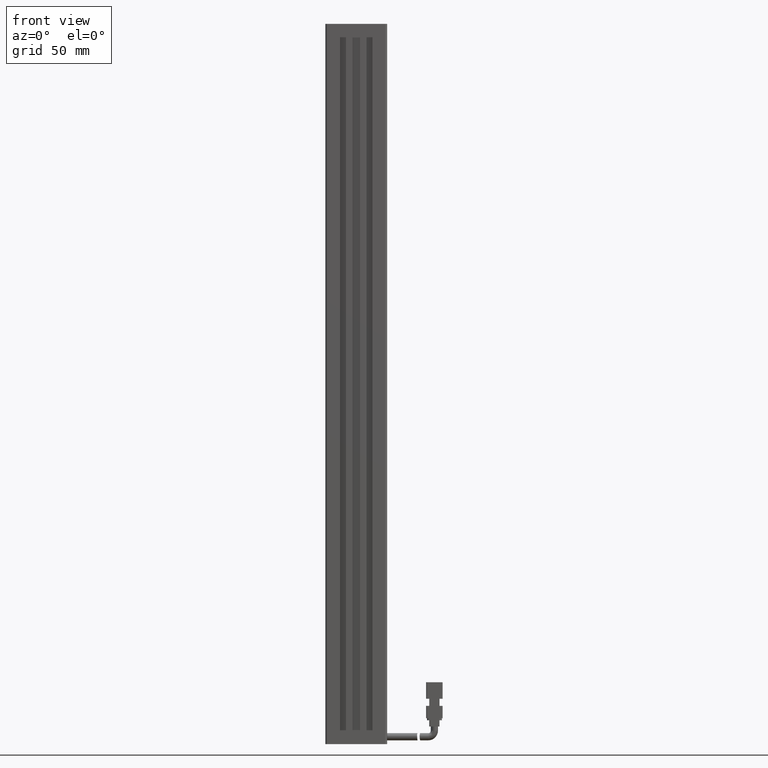
[diagram: clean part render]
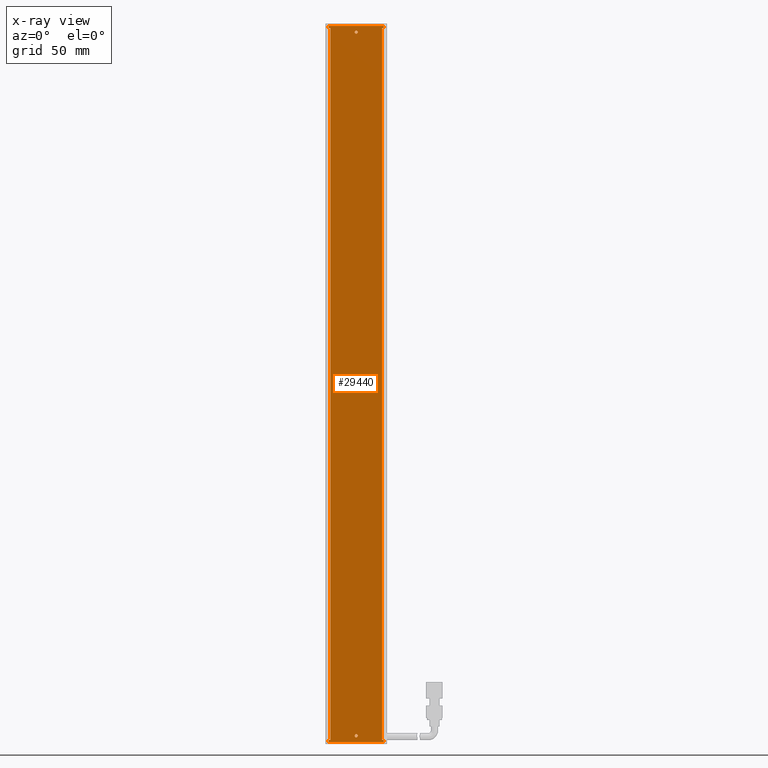
[diagram: x-ray — body ghosted, one internal face saturated and labeled with its STEP entity id]
A machine part, front view, then the same camera in x-ray: the body is ghosted and one INTERNAL B-rep face — a face not visible from any outside direction — is saturated and labeled: STEP entity #29440.
In plain terms, the highlighted planar face has unit normal (-0, 1, 0).
Its self-contained STEP definition (entity closure, byte-faithful):
#1056 = DIRECTION ( 'NONE',  ( -0.0000000000000000000, -0.0000000000000000000, -1.000000000000000000 ) ) ;
#1829 = ORIENTED_EDGE ( 'NONE', *, *, #15910, .F. ) ;
#1908 = CIRCLE ( 'NONE', #6492, 0.7499999999999729100 ) ;
#2157 = CARTESIAN_POINT ( 'NONE',  ( 54.32537974683540200, 32.19594479660386100, -288.0000000000000600 ) ) ;
#2257 = DIRECTION ( 'NONE',  ( 5.551115123125781500E-017, 0.0000000000000000000, 1.000000000000000000 ) ) ;
#5108 = CARTESIAN_POINT ( 'NONE',  ( 28.42537974683542100, 32.19594479660386800, 60.00000000000001400 ) ) ;
#5535 = ORIENTED_EDGE ( 'NONE', *, *, #42288, .F. ) ;
#6492 = AXIS2_PLACEMENT_3D ( 'NONE', #27719, #64194, #32967 ) ;
#7372 = VERTEX_POINT ( 'NONE', #44962 ) ;
#8231 = DIRECTION ( 'NONE',  ( -5.551115123125781500E-017, -0.0000000000000000000, -1.000000000000000000 ) ) ;
#8800 = VECTOR ( 'NONE', #55940, 1000.000000000000000 ) ;
#9302 = VECTOR ( 'NONE', #52233, 1000.000000000000000 ) ;
#9456 = CIRCLE ( 'NONE', #50354, 0.7499999999999729100 ) ;
#10446 = EDGE_CURVE ( 'NONE', #64390, #49673, #1908, .T. ) ;
#10892 = LINE ( 'NONE', #26284, #9302 ) ;
#11342 = VERTEX_POINT ( 'NONE', #38814 ) ;
#12390 = EDGE_CURVE ( 'NONE', #11342, #62693, #41146, .T. ) ;
#12787 = EDGE_CURVE ( 'NONE', #63011, #38519, #36272, .T. ) ;
#12870 = VECTOR ( 'NONE', #58849, 1000.000000000000000 ) ;
#12908 = ORIENTED_EDGE ( 'NONE', *, *, #12787, .F. ) ;
#13397 = CARTESIAN_POINT ( 'NONE',  ( 27.52537974683538000, 32.19594479660386100, 59.00000000000005000 ) ) ;
#13995 = CARTESIAN_POINT ( 'NONE',  ( 40.92537974683536100, 32.19594479660386100, -285.2500000000000000 ) ) ;
#14304 = CARTESIAN_POINT ( 'NONE',  ( 54.32537974683541600, 32.19594479660386100, 59.00000000000005000 ) ) ;
#14660 = VERTEX_POINT ( 'NONE', #65896 ) ;
#14723 = CARTESIAN_POINT ( 'NONE',  ( 53.42537974683542500, 32.19594479660386800, 58.00000000000000700 ) ) ;
#15576 = LINE ( 'NONE', #13397, #41642 ) ;
#15910 = EDGE_CURVE ( 'NONE', #22741, #42462, #67097, .T. ) ;
#16006 = VERTEX_POINT ( 'NONE', #66079 ) ;
#17324 = ORIENTED_EDGE ( 'NONE', *, *, #10446, .F. ) ;
#17420 = CARTESIAN_POINT ( 'NONE',  ( 40.92537974683536100, 32.19594479660386100, -286.7499999999999400 ) ) ;
#17669 = VECTOR ( 'NONE', #20174, 1000.000000000000000 ) ;
#17766 = ORIENTED_EDGE ( 'NONE', *, *, #59294, .F. ) ;
#18438 = AXIS2_PLACEMENT_3D ( 'NONE', #23224, #59604, #28437 ) ;
#19134 = CARTESIAN_POINT ( 'NONE',  ( 40.92537974683536100, 32.19594479660386100, -286.0000000000000000 ) ) ;
#19331 = LINE ( 'NONE', #35678, #17669 ) ;
#19379 = ORIENTED_EDGE ( 'NONE', *, *, #35987, .F. ) ;
#19846 = EDGE_CURVE ( 'NONE', #36177, #57789, #26715, .T. ) ;
#20174 = DIRECTION ( 'NONE',  ( 1.000000000000000000, 0.0000000000000000000, 0.0000000000000000000 ) ) ;
#20838 = EDGE_CURVE ( 'NONE', #63011, #60167, #34675, .T. ) ;
#20932 = DIRECTION ( 'NONE',  ( -1.000000000000000000, -0.0000000000000000000, 0.0000000000000000000 ) ) ;
#22741 = VERTEX_POINT ( 'NONE', #2157 ) ;
#23224 = CARTESIAN_POINT ( 'NONE',  ( 40.92537974683541800, 32.19594479660386100, 56.00000000000005000 ) ) ;
#23636 = CARTESIAN_POINT ( 'NONE',  ( 54.32537974683540900, 32.19594479660386100, -289.0000000000000000 ) ) ;
#24403 = DIRECTION ( 'NONE',  ( 0.0000000000000000000, 0.0000000000000000000, 1.000000000000000000 ) ) ;
#25100 = ORIENTED_EDGE ( 'NONE', *, *, #48107, .T. ) ;
#26284 = CARTESIAN_POINT ( 'NONE',  ( 40.92537974683542500, 32.19594479660386800, 58.00000000000000700 ) ) ;
#26378 = CARTESIAN_POINT ( 'NONE',  ( 40.92537974683542500, 32.19594479660386800, -288.0000000000000600 ) ) ;
#26396 = LINE ( 'NONE', #26378, #66362 ) ;
#26541 = CARTESIAN_POINT ( 'NONE',  ( 28.42537974683542100, 32.19594479660386800, -288.0000000000000600 ) ) ;
#26715 = LINE ( 'NONE', #37703, #12870 ) ;
#27719 = CARTESIAN_POINT ( 'NONE',  ( 40.92537974683536100, 32.19594479660386100, -286.0000000000000000 ) ) ;
#27923 = ORIENTED_EDGE ( 'NONE', *, *, #19846, .F. ) ;
#28004 = PLANE ( 'NONE',  #56020 ) ;
#28437 = DIRECTION ( 'NONE',  ( 0.0000000000000000000, 0.0000000000000000000, 1.000000000000000000 ) ) ;
#28908 = EDGE_CURVE ( 'NONE', #62693, #11342, #52228, .T. ) ;
#28960 = CARTESIAN_POINT ( 'NONE',  ( 54.32537974683541600, 32.19594479660386100, 59.00000000000005000 ) ) ;
#29014 = DIRECTION ( 'NONE',  ( -0.0000000000000000000, -1.000000000000000000, -0.0000000000000000000 ) ) ;
#29440 = ADVANCED_FACE ( 'NONE', ( #64757, #50852, #66388 ), #28004, .F. ) ;
#29844 = ORIENTED_EDGE ( 'NONE', *, *, #61312, .T. ) ;
#30174 = VERTEX_POINT ( 'NONE', #42866 ) ;
#30531 = LINE ( 'NONE', #46697, #44358 ) ;
#31259 = CARTESIAN_POINT ( 'NONE',  ( 54.32537974683541600, 32.19594479660386100, 58.00000000000000700 ) ) ;
#31568 = CARTESIAN_POINT ( 'NONE',  ( 53.42537974683542500, 32.19594479660386100, -288.0000000000000600 ) ) ;
#32967 = DIRECTION ( 'NONE',  ( 0.0000000000000000000, 0.0000000000000000000, 1.000000000000000000 ) ) ;
#33483 = DIRECTION ( 'NONE',  ( -0.0000000000000000000, 1.000000000000000000, 0.0000000000000000000 ) ) ;
#34418 = CARTESIAN_POINT ( 'NONE',  ( 27.52537974683535900, 32.19594479660386800, -288.0000000000000600 ) ) ;
#34675 = LINE ( 'NONE', #51687, #60731 ) ;
#34811 = EDGE_CURVE ( 'NONE', #14660, #30174, #15576, .T. ) ;
#35195 = VECTOR ( 'NONE', #62291, 1000.000000000000000 ) ;
#35678 = CARTESIAN_POINT ( 'NONE',  ( 40.92537974683542500, 32.19594479660386800, -288.0000000000000600 ) ) ;
#35987 = EDGE_CURVE ( 'NONE', #49673, #64390, #9456, .T. ) ;
#36177 = VERTEX_POINT ( 'NONE', #56928 ) ;
#36272 = LINE ( 'NONE', #58394, #63973 ) ;
#36828 = LINE ( 'NONE', #5108, #35195 ) ;
#37026 = CARTESIAN_POINT ( 'NONE',  ( 54.32537974683537400, 32.19594479660386100, -289.0000000000000000 ) ) ;
#37210 = EDGE_CURVE ( 'NONE', #16006, #53614, #36828, .T. ) ;
#37516 = LINE ( 'NONE', #23636, #49757 ) ;
#37703 = CARTESIAN_POINT ( 'NONE',  ( 27.52537974683538000, 32.19594479660386100, 59.00000000000005000 ) ) ;
#38519 = VERTEX_POINT ( 'NONE', #31568 ) ;
#38814 = CARTESIAN_POINT ( 'NONE',  ( 40.92537974683541800, 32.19594479660386100, 56.75000000000005000 ) ) ;
#41146 = CIRCLE ( 'NONE', #18438, 0.7500000000000006700 ) ;
#41642 = VECTOR ( 'NONE', #60287, 1000.000000000000000 ) ;
#41753 = EDGE_LOOP ( 'NONE', ( #19379, #17324 ) ) ;
#42288 = EDGE_CURVE ( 'NONE', #30174, #7372, #64218, .T. ) ;
#42462 = VERTEX_POINT ( 'NONE', #37026 ) ;
#42866 = CARTESIAN_POINT ( 'NONE',  ( 27.52537974683541200, 32.19594479660386100, 59.00000000000005000 ) ) ;
#43180 = CARTESIAN_POINT ( 'NONE',  ( 40.92537974683541800, 32.19594479660386100, 55.25000000000005000 ) ) ;
#44358 = VECTOR ( 'NONE', #51707, 1000.000000000000000 ) ;
#44962 = CARTESIAN_POINT ( 'NONE',  ( 54.32537974683541600, 32.19594479660386100, 59.00000000000005000 ) ) ;
#46610 = ORIENTED_EDGE ( 'NONE', *, *, #64457, .F. ) ;
#46697 = CARTESIAN_POINT ( 'NONE',  ( 54.32537974683541600, 32.19594479660386100, 59.00000000000005000 ) ) ;
#48107 = EDGE_CURVE ( 'NONE', #53614, #57789, #26396, .T. ) ;
#48384 = ORIENTED_EDGE ( 'NONE', *, *, #28908, .F. ) ;
#49673 = VERTEX_POINT ( 'NONE', #13995 ) ;
#49757 = VECTOR ( 'NONE', #60049, 1000.000000000000000 ) ;
#50354 = AXIS2_PLACEMENT_3D ( 'NONE', #19134, #55571, #24403 ) ;
#50460 = EDGE_LOOP ( 'NONE', ( #46610, #12908, #50809, #56016, #5535, #59533, #29844, #63369, #25100, #27923, #17766, #1829 ) ) ;
#50809 = ORIENTED_EDGE ( 'NONE', *, *, #20838, .T. ) ;
#50852 = FACE_BOUND ( 'NONE', #63699, .T. ) ;
#51687 = CARTESIAN_POINT ( 'NONE',  ( 25.92537974683541800, 32.19594479660386100, 58.00000000000000700 ) ) ;
#51707 = DIRECTION ( 'NONE',  ( -5.551115123125781500E-017, -0.0000000000000000000, -1.000000000000000000 ) ) ;
#52228 = CIRCLE ( 'NONE', #52912, 0.7500000000000006700 ) ;
#52233 = DIRECTION ( 'NONE',  ( 1.000000000000000000, 0.0000000000000000000, -0.0000000000000000000 ) ) ;
#52912 = AXIS2_PLACEMENT_3D ( 'NONE', #60183, #29014, #65458 ) ;
#53169 = VECTOR ( 'NONE', #8231, 1000.000000000000000 ) ;
#53614 = VERTEX_POINT ( 'NONE', #26541 ) ;
#55571 = DIRECTION ( 'NONE',  ( -0.0000000000000000000, -1.000000000000000000, -0.0000000000000000000 ) ) ;
#55940 = DIRECTION ( 'NONE',  ( 1.000000000000000000, 0.0000000000000000000, -5.551115123125781500E-017 ) ) ;
#56016 = ORIENTED_EDGE ( 'NONE', *, *, #65118, .F. ) ;
#56020 = AXIS2_PLACEMENT_3D ( 'NONE', #64711, #33483, #2257 ) ;
#56707 = DIRECTION ( 'NONE',  ( 1.000000000000000000, -0.0000000000000000000, 0.0000000000000000000 ) ) ;
#56928 = CARTESIAN_POINT ( 'NONE',  ( 27.52537974683535900, 32.19594479660386100, -289.0000000000000000 ) ) ;
#57789 = VERTEX_POINT ( 'NONE', #34418 ) ;
#58394 = CARTESIAN_POINT ( 'NONE',  ( 53.42537974683542500, 32.19594479660386800, 60.00000000000001400 ) ) ;
#58849 = DIRECTION ( 'NONE',  ( 5.551115123125781500E-017, 0.0000000000000000000, 1.000000000000000000 ) ) ;
#59294 = EDGE_CURVE ( 'NONE', #42462, #36177, #37516, .T. ) ;
#59533 = ORIENTED_EDGE ( 'NONE', *, *, #34811, .F. ) ;
#59604 = DIRECTION ( 'NONE',  ( -0.0000000000000000000, -1.000000000000000000, -0.0000000000000000000 ) ) ;
#60049 = DIRECTION ( 'NONE',  ( -1.000000000000000000, -0.0000000000000000000, 5.551115123125781500E-017 ) ) ;
#60167 = VERTEX_POINT ( 'NONE', #31259 ) ;
#60183 = CARTESIAN_POINT ( 'NONE',  ( 40.92537974683541800, 32.19594479660386100, 56.00000000000005000 ) ) ;
#60287 = DIRECTION ( 'NONE',  ( 5.551115123125781500E-017, 0.0000000000000000000, 1.000000000000000000 ) ) ;
#60731 = VECTOR ( 'NONE', #56707, 1000.000000000000000 ) ;
#61312 = EDGE_CURVE ( 'NONE', #14660, #16006, #10892, .T. ) ;
#62291 = DIRECTION ( 'NONE',  ( -0.0000000000000000000, -0.0000000000000000000, -1.000000000000000000 ) ) ;
#62524 = ORIENTED_EDGE ( 'NONE', *, *, #12390, .F. ) ;
#62693 = VERTEX_POINT ( 'NONE', #43180 ) ;
#63011 = VERTEX_POINT ( 'NONE', #14723 ) ;
#63369 = ORIENTED_EDGE ( 'NONE', *, *, #37210, .T. ) ;
#63699 = EDGE_LOOP ( 'NONE', ( #62524, #48384 ) ) ;
#63973 = VECTOR ( 'NONE', #1056, 1000.000000000000000 ) ;
#64194 = DIRECTION ( 'NONE',  ( -0.0000000000000000000, -1.000000000000000000, -0.0000000000000000000 ) ) ;
#64218 = LINE ( 'NONE', #14304, #8800 ) ;
#64390 = VERTEX_POINT ( 'NONE', #17420 ) ;
#64457 = EDGE_CURVE ( 'NONE', #38519, #22741, #19331, .T. ) ;
#64711 = CARTESIAN_POINT ( 'NONE',  ( 54.32537974683541600, 32.19594479660386100, 59.00000000000005000 ) ) ;
#64757 = FACE_OUTER_BOUND ( 'NONE', #50460, .T. ) ;
#65118 = EDGE_CURVE ( 'NONE', #7372, #60167, #30531, .T. ) ;
#65458 = DIRECTION ( 'NONE',  ( 0.0000000000000000000, 0.0000000000000000000, 1.000000000000000000 ) ) ;
#65896 = CARTESIAN_POINT ( 'NONE',  ( 27.52537974683535900, 32.19594479660386800, 58.00000000000000700 ) ) ;
#66079 = CARTESIAN_POINT ( 'NONE',  ( 28.42537974683542100, 32.19594479660386100, 58.00000000000000700 ) ) ;
#66362 = VECTOR ( 'NONE', #20932, 1000.000000000000000 ) ;
#66388 = FACE_BOUND ( 'NONE', #41753, .T. ) ;
#67097 = LINE ( 'NONE', #28960, #53169 ) ;